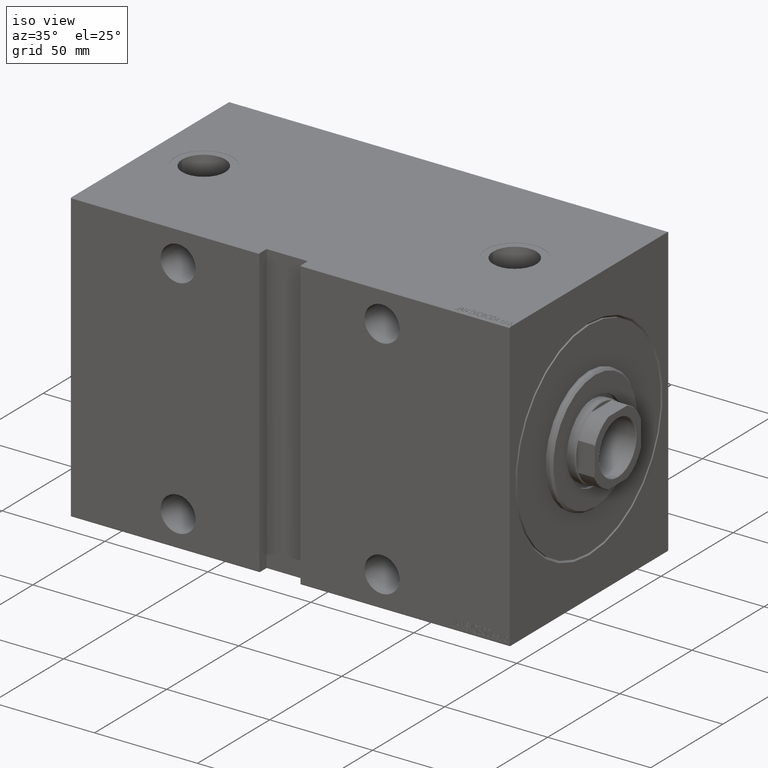
[diagram: clean part render]
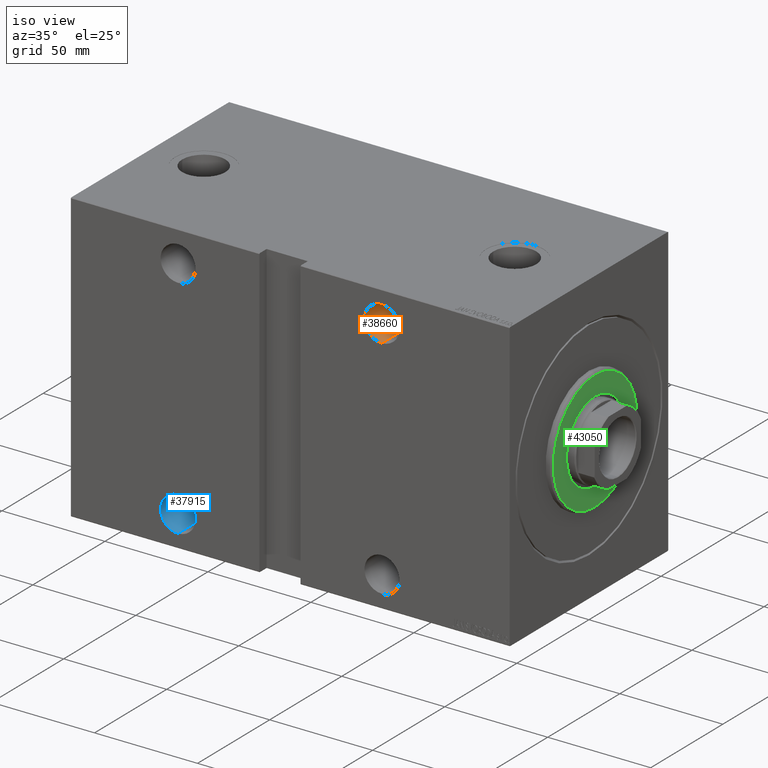
[diagram: same view with three faces highlighted in distinct colors, each labeled with its STEP entity id]
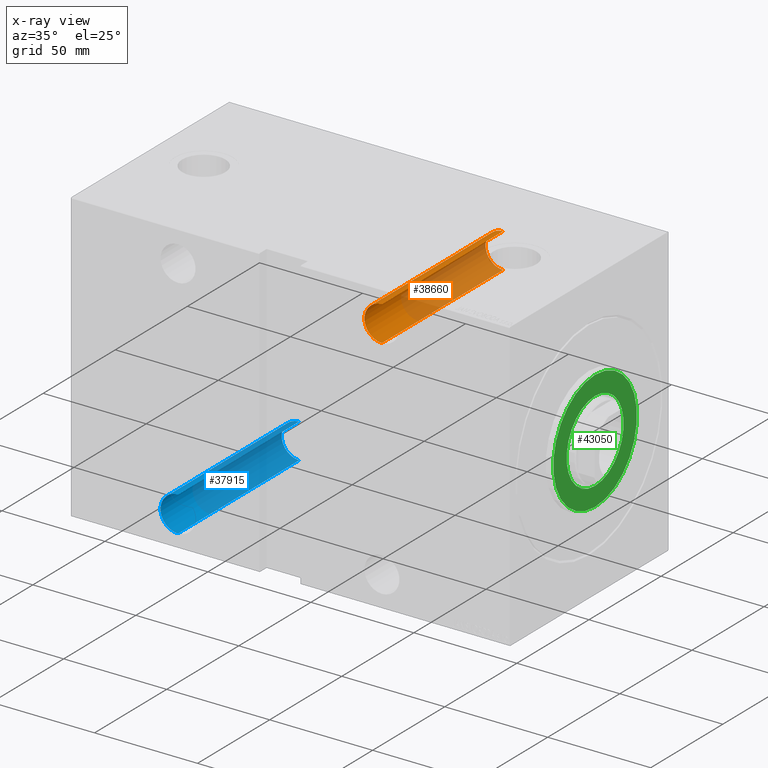
[diagram: x-ray of the same camera — body ghosted, the three highlighted faces saturated]
A machine part, iso view with three faces highlighted in distinct colors.
The next image is the same camera in x-ray (body ghosted, the three faces saturated) — at least one of them is partly hidden behind the body in this view.
Their STEP definitions:

[orange] entity #38660 — the highlighted cylindrical surface (edge-blend (fillet) strip) has radius 8.5 mm, axis along (0, -1, 0).
#1243 = CIRCLE ( 'NONE', #43511, 8.500000000000007105 ) ;
#4165 = FACE_OUTER_BOUND ( 'NONE', #7933, .T. ) ;
#4386 = DIRECTION ( 'NONE',  ( 0.000000000000000000, 0.000000000000000000, 1.000000000000000000 ) ) ;
#7140 = CARTESIAN_POINT ( 'NONE',  ( 61.99999999999999289, -55.00000000000005684, 46.49999999999998579 ) ) ;
#7933 = EDGE_LOOP ( 'NONE', ( #28688, #42002, #31351, #41481 ) ) ;
#8512 = CARTESIAN_POINT ( 'NONE',  ( 61.99999999999999289, 54.99999999999998579, 46.50000000000000000 ) ) ;
#8826 = AXIS2_PLACEMENT_3D ( 'NONE', #27305, #21458, #4386 ) ;
#9751 = VERTEX_POINT ( 'NONE', #20753 ) ;
#10661 = CARTESIAN_POINT ( 'NONE',  ( 61.99999999999999289, 54.99999999999998579, 63.50000000000001421 ) ) ;
#10807 = DIRECTION ( 'NONE',  ( -0.000000000000000000, 1.000000000000000000, -0.000000000000000000 ) ) ;
#15965 = CARTESIAN_POINT ( 'NONE',  ( 61.99999999999999289, 54.99999999999998579, 55.00000000000000711 ) ) ;
#16852 = EDGE_CURVE ( 'NONE', #21396, #32486, #19781, .T. ) ;
#17119 = VERTEX_POINT ( 'NONE', #8512 ) ;
#18468 = EDGE_CURVE ( 'NONE', #17119, #32486, #1243, .T. ) ;
#19781 = LINE ( 'NONE', #40625, #42761 ) ;
#20216 = DIRECTION ( 'NONE',  ( 0.000000000000000000, 0.000000000000000000, -1.000000000000000000 ) ) ;
#20446 = DIRECTION ( 'NONE',  ( -0.000000000000000000, 1.000000000000000000, 1.261617073437677752E-16 ) ) ;
#20622 = LINE ( 'NONE', #7140, #27898 ) ;
#20753 = CARTESIAN_POINT ( 'NONE',  ( 61.99999999999999289, -28.99999999999999289, 46.49999999999998579 ) ) ;
#21396 = VERTEX_POINT ( 'NONE', #39737 ) ;
#21458 = DIRECTION ( 'NONE',  ( -0.000000000000000000, 1.000000000000000000, 1.261617073437677752E-16 ) ) ;
#22696 = DIRECTION ( 'NONE',  ( 0.000000000000000000, -1.000000000000000000, -1.982541115402065356E-16 ) ) ;
#22712 = EDGE_CURVE ( 'NONE', #9751, #17119, #20622, .T. ) ;
#23955 = CYLINDRICAL_SURFACE ( 'NONE', #8826, 8.500000000000007105 ) ;
#27305 = CARTESIAN_POINT ( 'NONE',  ( 61.99999999999999289, -55.00000000000005684, 54.99999999999999289 ) ) ;
#27565 = EDGE_CURVE ( 'NONE', #21396, #9751, #30746, .T. ) ;
#27898 = VECTOR ( 'NONE', #38102, 1000.000000000000000 ) ;
#28294 = CARTESIAN_POINT ( 'NONE',  ( 61.99999999999999289, -28.99999999999999289, 54.99999999999999289 ) ) ;
#28688 = ORIENTED_EDGE ( 'NONE', *, *, #22712, .F. ) ;
#30746 = CIRCLE ( 'NONE', #35037, 8.500000000000007105 ) ;
#31351 = ORIENTED_EDGE ( 'NONE', *, *, #16852, .T. ) ;
#32486 = VERTEX_POINT ( 'NONE', #10661 ) ;
#35037 = AXIS2_PLACEMENT_3D ( 'NONE', #28294, #10807, #41949 ) ;
#38102 = DIRECTION ( 'NONE',  ( -0.000000000000000000, 1.000000000000000000, 1.261617073437677752E-16 ) ) ;
#38660 = ADVANCED_FACE ( 'NONE', ( #4165 ), #23955, .F. ) ;
#39737 = CARTESIAN_POINT ( 'NONE',  ( 61.99999999999999289, -28.99999999999999289, 63.50000000000000000 ) ) ;
#40625 = CARTESIAN_POINT ( 'NONE',  ( 61.99999999999999289, -55.00000000000005684, 63.50000000000000000 ) ) ;
#41481 = ORIENTED_EDGE ( 'NONE', *, *, #18468, .F. ) ;
#41949 = DIRECTION ( 'NONE',  ( 0.000000000000000000, 0.000000000000000000, -1.000000000000000000 ) ) ;
#42002 = ORIENTED_EDGE ( 'NONE', *, *, #27565, .F. ) ;
#42761 = VECTOR ( 'NONE', #20446, 1000.000000000000000 ) ;
#43511 = AXIS2_PLACEMENT_3D ( 'NONE', #15965, #22696, #20216 ) ;

[blue] entity #37915 — the highlighted cylindrical surface (edge-blend (fillet) strip) has radius 8.5 mm, axis along (0, -1, 0).
#533 = CARTESIAN_POINT ( 'NONE',  ( 160.9999999999999716, 55.00000000000002842, -54.99999999999999289 ) ) ;
#2797 = DIRECTION ( 'NONE',  ( -0.000000000000000000, 1.000000000000000000, 1.261617073437677752E-16 ) ) ;
#3527 = VERTEX_POINT ( 'NONE', #8851 ) ;
#6321 = LINE ( 'NONE', #20021, #10092 ) ;
#6486 = VECTOR ( 'NONE', #2797, 1000.000000000000000 ) ;
#8851 = CARTESIAN_POINT ( 'NONE',  ( 160.9999999999999716, 55.00000000000002842, -63.50000000000000000 ) ) ;
#8939 = VERTEX_POINT ( 'NONE', #40703 ) ;
#10092 = VECTOR ( 'NONE', #29893, 1000.000000000000000 ) ;
#10284 = DIRECTION ( 'NONE',  ( -0.000000000000000000, 1.000000000000000000, -0.000000000000000000 ) ) ;
#10423 = DIRECTION ( 'NONE',  ( 0.000000000000000000, -1.000000000000000000, -1.982541115402065356E-16 ) ) ;
#10996 = AXIS2_PLACEMENT_3D ( 'NONE', #18745, #35561, #32417 ) ;
#13132 = AXIS2_PLACEMENT_3D ( 'NONE', #533, #10423, #14455 ) ;
#14455 = DIRECTION ( 'NONE',  ( 0.000000000000000000, 0.000000000000000000, -1.000000000000000000 ) ) ;
#14490 = CARTESIAN_POINT ( 'NONE',  ( 160.9999999999999716, 55.00000000000002842, -46.49999999999998579 ) ) ;
#15019 = ORIENTED_EDGE ( 'NONE', *, *, #25309, .F. ) ;
#15722 = EDGE_LOOP ( 'NONE', ( #25771, #15019, #25273, #18601 ) ) ;
#16010 = CIRCLE ( 'NONE', #13132, 8.500000000000007105 ) ;
#16653 = VERTEX_POINT ( 'NONE', #14490 ) ;
#18601 = ORIENTED_EDGE ( 'NONE', *, *, #38933, .F. ) ;
#18745 = CARTESIAN_POINT ( 'NONE',  ( 160.9999999999999716, -55.00000000000004263, -55.00000000000000711 ) ) ;
#20021 = CARTESIAN_POINT ( 'NONE',  ( 160.9999999999999716, -55.00000000000004263, -63.50000000000001421 ) ) ;
#22787 = CARTESIAN_POINT ( 'NONE',  ( 160.9999999999999716, -55.00000000000004263, -46.50000000000000000 ) ) ;
#25262 = FACE_OUTER_BOUND ( 'NONE', #15722, .T. ) ;
#25273 = ORIENTED_EDGE ( 'NONE', *, *, #30767, .T. ) ;
#25309 = EDGE_CURVE ( 'NONE', #8939, #28307, #37180, .T. ) ;
#25771 = ORIENTED_EDGE ( 'NONE', *, *, #31166, .F. ) ;
#26808 = LINE ( 'NONE', #22787, #6486 ) ;
#28307 = VERTEX_POINT ( 'NONE', #30287 ) ;
#29893 = DIRECTION ( 'NONE',  ( -0.000000000000000000, 1.000000000000000000, 1.261617073437677752E-16 ) ) ;
#30287 = CARTESIAN_POINT ( 'NONE',  ( 160.9999999999999716, -28.99999999999999289, -63.50000000000001421 ) ) ;
#30767 = EDGE_CURVE ( 'NONE', #8939, #16653, #26808, .T. ) ;
#31166 = EDGE_CURVE ( 'NONE', #28307, #3527, #6321, .T. ) ;
#31362 = DIRECTION ( 'NONE',  ( 0.000000000000000000, 0.000000000000000000, -1.000000000000000000 ) ) ;
#32417 = DIRECTION ( 'NONE',  ( 0.000000000000000000, 0.000000000000000000, 1.000000000000000000 ) ) ;
#35132 = CYLINDRICAL_SURFACE ( 'NONE', #10996, 8.500000000000007105 ) ;
#35561 = DIRECTION ( 'NONE',  ( -0.000000000000000000, 1.000000000000000000, 1.261617073437677752E-16 ) ) ;
#37180 = CIRCLE ( 'NONE', #39309, 8.500000000000007105 ) ;
#37915 = ADVANCED_FACE ( 'NONE', ( #25262 ), #35132, .F. ) ;
#38933 = EDGE_CURVE ( 'NONE', #3527, #16653, #16010, .T. ) ;
#39309 = AXIS2_PLACEMENT_3D ( 'NONE', #41004, #10284, #31362 ) ;
#40703 = CARTESIAN_POINT ( 'NONE',  ( 160.9999999999999716, -28.99999999999999289, -46.50000000000000000 ) ) ;
#41004 = CARTESIAN_POINT ( 'NONE',  ( 160.9999999999999716, -28.99999999999999289, -55.00000000000000711 ) ) ;

[green] entity #43050 — the highlighted planar face has unit normal (1, 0, 0).
#47 = VERTEX_POINT ( 'NONE', #15631 ) ;
#503 = FACE_BOUND ( 'NONE', #34226, .T. ) ;
#1060 = CARTESIAN_POINT ( 'NONE',  ( 3.000000000000000000, 0.000000000000000000, 0.000000000000000000 ) ) ;
#2059 = AXIS2_PLACEMENT_3D ( 'NONE', #38383, #14837, #37943 ) ;
#2443 = EDGE_CURVE ( 'NONE', #24511, #47, #33507, .T. ) ;
#3640 = PLANE ( 'NONE',  #41068 ) ;
#4078 = DIRECTION ( 'NONE',  ( 1.000000000000000000, -0.000000000000000000, 0.000000000000000000 ) ) ;
#4100 = ORIENTED_EDGE ( 'NONE', *, *, #25398, .T. ) ;
#4205 = CIRCLE ( 'NONE', #12819, 28.99999999999998224 ) ;
#6017 = ORIENTED_EDGE ( 'NONE', *, *, #2443, .T. ) ;
#7095 = CIRCLE ( 'NONE', #2059, 28.99999999999998224 ) ;
#7113 = VERTEX_POINT ( 'NONE', #7615 ) ;
#7615 = CARTESIAN_POINT ( 'NONE',  ( 3.000000000000000000, 0.000000000000000000, 28.99999999999998224 ) ) ;
#9154 = ORIENTED_EDGE ( 'NONE', *, *, #27573, .T. ) ;
#12819 = AXIS2_PLACEMENT_3D ( 'NONE', #1060, #14759, #19167 ) ;
#14431 = EDGE_CURVE ( 'NONE', #47, #24511, #20503, .T. ) ;
#14700 = CARTESIAN_POINT ( 'NONE',  ( 3.000000000000000000, 0.000000000000000000, 19.75000000000000000 ) ) ;
#14759 = DIRECTION ( 'NONE',  ( 1.000000000000000000, -0.000000000000000000, 0.000000000000000000 ) ) ;
#14837 = DIRECTION ( 'NONE',  ( 1.000000000000000000, -0.000000000000000000, 0.000000000000000000 ) ) ;
#15631 = CARTESIAN_POINT ( 'NONE',  ( 3.000000000000000000, 2.418677428316022331E-15, -19.75000000000000000 ) ) ;
#15861 = CARTESIAN_POINT ( 'NONE',  ( 3.000000000000000000, 0.000000000000000000, 0.000000000000000000 ) ) ;
#17114 = CARTESIAN_POINT ( 'NONE',  ( 3.000000000000000000, 0.000000000000000000, 0.000000000000000000 ) ) ;
#17352 = CARTESIAN_POINT ( 'NONE',  ( 3.000000000000000000, 0.000000000000000000, 0.000000000000000000 ) ) ;
#19167 = DIRECTION ( 'NONE',  ( 0.000000000000000000, 0.000000000000000000, -1.000000000000000000 ) ) ;
#19907 = VERTEX_POINT ( 'NONE', #24431 ) ;
#20028 = DIRECTION ( 'NONE',  ( 0.000000000000000000, 0.000000000000000000, -1.000000000000000000 ) ) ;
#20503 = CIRCLE ( 'NONE', #26937, 19.75000000000000000 ) ;
#22371 = DIRECTION ( 'NONE',  ( -1.000000000000000000, 0.000000000000000000, -0.000000000000000000 ) ) ;
#24209 = AXIS2_PLACEMENT_3D ( 'NONE', #15861, #22371, #36041 ) ;
#24431 = CARTESIAN_POINT ( 'NONE',  ( 3.000000000000000000, 3.612708057484690026E-15, -28.99999999999998224 ) ) ;
#24511 = VERTEX_POINT ( 'NONE', #14700 ) ;
#25398 = EDGE_CURVE ( 'NONE', #7113, #19907, #4205, .T. ) ;
#26937 = AXIS2_PLACEMENT_3D ( 'NONE', #17114, #44238, #20028 ) ;
#27573 = EDGE_CURVE ( 'NONE', #19907, #7113, #7095, .T. ) ;
#27884 = DIRECTION ( 'NONE',  ( 0.000000000000000000, 0.000000000000000000, -1.000000000000000000 ) ) ;
#33507 = CIRCLE ( 'NONE', #24209, 19.75000000000000000 ) ;
#34226 = EDGE_LOOP ( 'NONE', ( #6017, #38779 ) ) ;
#34392 = FACE_OUTER_BOUND ( 'NONE', #43060, .T. ) ;
#36041 = DIRECTION ( 'NONE',  ( 0.000000000000000000, 0.000000000000000000, -1.000000000000000000 ) ) ;
#37943 = DIRECTION ( 'NONE',  ( 0.000000000000000000, 0.000000000000000000, -1.000000000000000000 ) ) ;
#38383 = CARTESIAN_POINT ( 'NONE',  ( 3.000000000000000000, 0.000000000000000000, 0.000000000000000000 ) ) ;
#38779 = ORIENTED_EDGE ( 'NONE', *, *, #14431, .T. ) ;
#41068 = AXIS2_PLACEMENT_3D ( 'NONE', #17352, #4078, #27884 ) ;
#43050 = ADVANCED_FACE ( 'NONE', ( #34392, #503 ), #3640, .T. ) ;
#43060 = EDGE_LOOP ( 'NONE', ( #4100, #9154 ) ) ;
#44238 = DIRECTION ( 'NONE',  ( -1.000000000000000000, 0.000000000000000000, -0.000000000000000000 ) ) ;